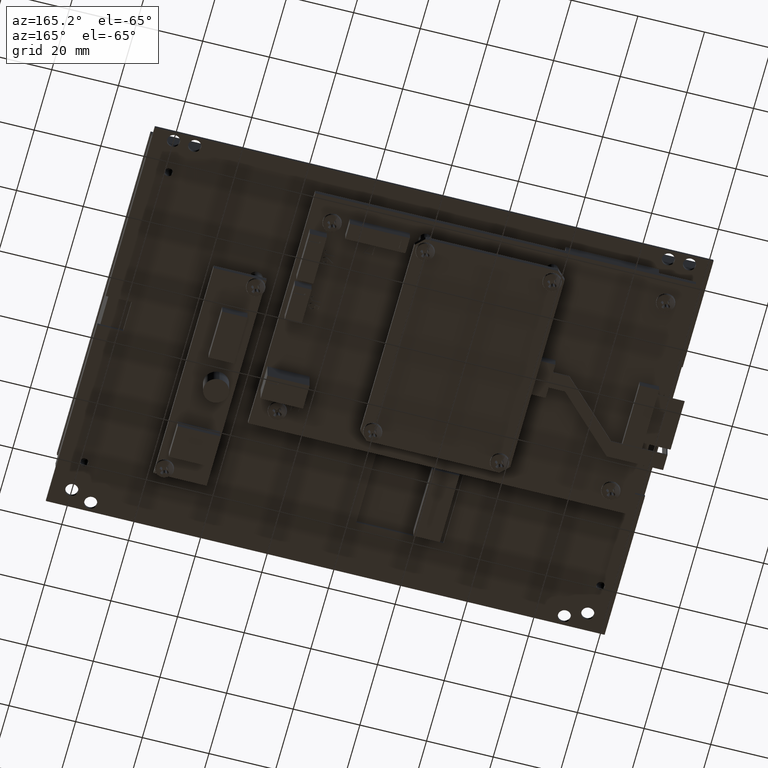
[diagram: clean part render]
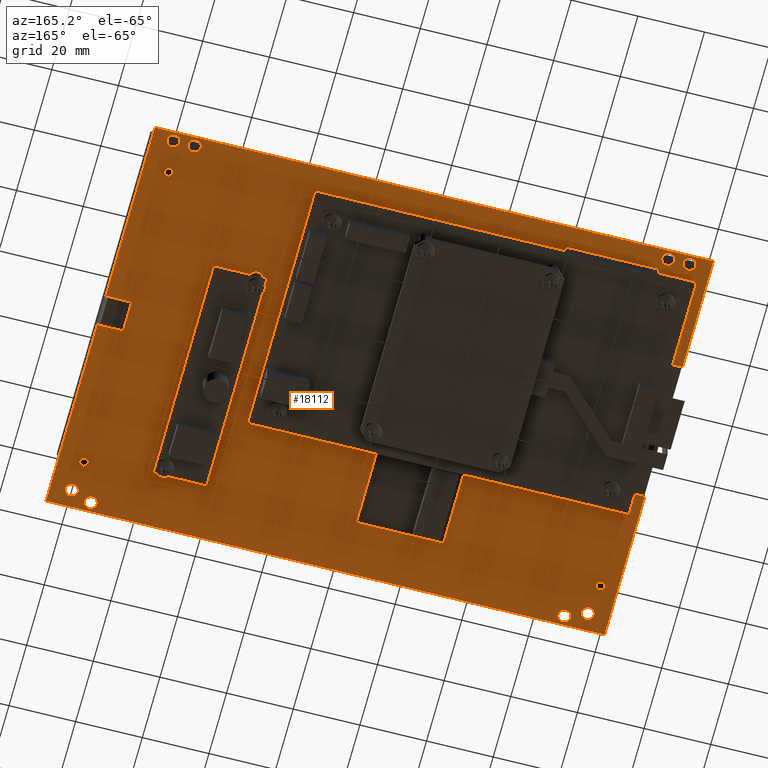
[diagram: same view with one face highlighted and labeled with its STEP entity id]
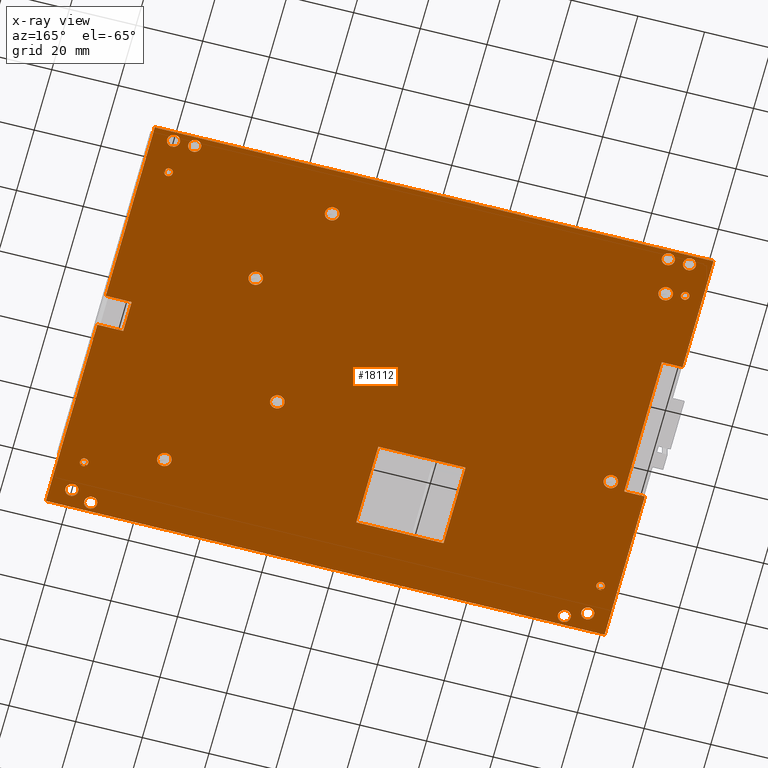
[diagram: x-ray of the same camera — body ghosted, the highlighted face saturated]
A machine part, auxiliary view. The second image highlights one B-rep face of the part: STEP entity #18112.
The next image is the same camera in x-ray: the body ghosted, the highlighted face saturated — about 0% of this face is hidden behind the body in this view.
In plain terms, the highlighted planar face has unit normal (0, 0, -1).
Its self-contained STEP definition (entity closure, byte-faithful):
#718 = EDGE_CURVE ( 'NONE', #7805, #7856, #7700, .T. ) ;
#721 = EDGE_CURVE ( 'NONE', #7651, #7840, #7699, .T. ) ;
#725 = EDGE_CURVE ( 'NONE', #7648, #7645, #7707, .T. ) ;
#729 = EDGE_CURVE ( 'NONE', #7647, #7644, #7765, .T. ) ;
#733 = EDGE_CURVE ( 'NONE', #7839, #7837, #7773, .T. ) ;
#737 = EDGE_CURVE ( 'NONE', #7831, #7830, #7779, .T. ) ;
#741 = EDGE_CURVE ( 'NONE', #7825, #7843, #7785, .T. ) ;
#745 = EDGE_CURVE ( 'NONE', #7855, #7853, #7791, .T. ) ;
#749 = EDGE_CURVE ( 'NONE', #7847, #7841, #7797, .T. ) ;
#753 = EDGE_CURVE ( 'NONE', #7852, #7845, #7129, .T. ) ;
#757 = EDGE_CURVE ( 'NONE', #7657, #7654, #7137, .T. ) ;
#761 = EDGE_CURVE ( 'NONE', #7658, #7659, #7143, .T. ) ;
#765 = EDGE_CURVE ( 'NONE', #7669, #7672, #7149, .T. ) ;
#769 = EDGE_CURVE ( 'NONE', #7861, #7862, #7155, .T. ) ;
#773 = EDGE_CURVE ( 'NONE', #7877, #7876, #7161, .T. ) ;
#777 = EDGE_CURVE ( 'NONE', #7879, #7882, #19380, .T. ) ;
#1058 = EDGE_LOOP ( 'NONE', ( #1215, #1186 ) ) ;
#1060 = EDGE_LOOP ( 'NONE', ( #1208, #1214 ) ) ;
#1062 = EDGE_LOOP ( 'NONE', ( #8325, #8326, #8327, #8328, #8329, #8330, #8331, #8332, #8333, #1179, #1191, #1220 ) ) ;
#1063 = EDGE_LOOP ( 'NONE', ( #1192, #1185 ) ) ;
#1064 = EDGE_LOOP ( 'NONE', ( #1193, #1218 ) ) ;
#1065 = EDGE_LOOP ( 'NONE', ( #1212, #1213 ) ) ;
#1066 = EDGE_LOOP ( 'NONE', ( #1176, #1177, #1221, #1182 ) ) ;
#1067 = EDGE_LOOP ( 'NONE', ( #1181, #1187 ) ) ;
#1068 = EDGE_LOOP ( 'NONE', ( #1188, #1190 ) ) ;
#1069 = EDGE_LOOP ( 'NONE', ( #1209, #1189 ) ) ;
#1070 = EDGE_LOOP ( 'NONE', ( #1183, #1194 ) ) ;
#1071 = EDGE_LOOP ( 'NONE', ( #1207, #1203 ) ) ;
#1086 = EDGE_LOOP ( 'NONE', ( #1184, #1180 ) ) ;
#1088 = EDGE_LOOP ( 'NONE', ( #1202, #1195 ) ) ;
#1090 = EDGE_LOOP ( 'NONE', ( #1178, #1206 ) ) ;
#1091 = EDGE_LOOP ( 'NONE', ( #1216, #1217 ) ) ;
#1092 = EDGE_LOOP ( 'NONE', ( #1219, #1201 ) ) ;
#1093 = EDGE_LOOP ( 'NONE', ( #1205, #1204 ) ) ;
#1094 = EDGE_LOOP ( 'NONE', ( #1200, #1199 ) ) ;
#1129 = EDGE_LOOP ( 'NONE', ( #1211, #1210 ) ) ;
#1176 = ORIENTED_EDGE ( 'NONE', *, *, #17754, .T. ) ;
#1177 = ORIENTED_EDGE ( 'NONE', *, *, #17755, .T. ) ;
#1178 = ORIENTED_EDGE ( 'NONE', *, *, #17769, .T. ) ;
#1179 = ORIENTED_EDGE ( 'NONE', *, *, #17704, .F. ) ;
#1180 = ORIENTED_EDGE ( 'NONE', *, *, #757, .T. ) ;
#1181 = ORIENTED_EDGE ( 'NONE', *, *, #17759, .T. ) ;
#1182 = ORIENTED_EDGE ( 'NONE', *, *, #17757, .T. ) ;
#1183 = ORIENTED_EDGE ( 'NONE', *, *, #17766, .T. ) ;
#1184 = ORIENTED_EDGE ( 'NONE', *, *, #17768, .T. ) ;
#1185 = ORIENTED_EDGE ( 'NONE', *, *, #729, .T. ) ;
#1186 = ORIENTED_EDGE ( 'NONE', *, *, #745, .T. ) ;
#1187 = ORIENTED_EDGE ( 'NONE', *, *, #721, .T. ) ;
#1188 = ORIENTED_EDGE ( 'NONE', *, *, #17758, .T. ) ;
#1189 = ORIENTED_EDGE ( 'NONE', *, *, #733, .T. ) ;
#1190 = ORIENTED_EDGE ( 'NONE', *, *, #718, .T. ) ;
#1191 = ORIENTED_EDGE ( 'NONE', *, *, #17712, .F. ) ;
#1192 = ORIENTED_EDGE ( 'NONE', *, *, #17761, .T. ) ;
#1193 = ORIENTED_EDGE ( 'NONE', *, *, #17763, .T. ) ;
#1194 = ORIENTED_EDGE ( 'NONE', *, *, #749, .T. ) ;
#1195 = ORIENTED_EDGE ( 'NONE', *, *, #765, .T. ) ;
#1199 = ORIENTED_EDGE ( 'NONE', *, *, #6352, .T. ) ;
#1200 = ORIENTED_EDGE ( 'NONE', *, *, #17775, .T. ) ;
#1201 = ORIENTED_EDGE ( 'NONE', *, *, #777, .T. ) ;
#1202 = ORIENTED_EDGE ( 'NONE', *, *, #17770, .T. ) ;
#1203 = ORIENTED_EDGE ( 'NONE', *, *, #753, .T. ) ;
#1204 = ORIENTED_EDGE ( 'NONE', *, *, #6348, .T. ) ;
#1205 = ORIENTED_EDGE ( 'NONE', *, *, #17774, .T. ) ;
#1206 = ORIENTED_EDGE ( 'NONE', *, *, #761, .T. ) ;
#1207 = ORIENTED_EDGE ( 'NONE', *, *, #17767, .T. ) ;
#1208 = ORIENTED_EDGE ( 'NONE', *, *, #17764, .T. ) ;
#1209 = ORIENTED_EDGE ( 'NONE', *, *, #17762, .T. ) ;
#1210 = ORIENTED_EDGE ( 'NONE', *, *, #769, .T. ) ;
#1211 = ORIENTED_EDGE ( 'NONE', *, *, #17771, .T. ) ;
#1212 = ORIENTED_EDGE ( 'NONE', *, *, #17760, .T. ) ;
#1213 = ORIENTED_EDGE ( 'NONE', *, *, #725, .T. ) ;
#1214 = ORIENTED_EDGE ( 'NONE', *, *, #741, .T. ) ;
#1215 = ORIENTED_EDGE ( 'NONE', *, *, #17765, .T. ) ;
#1216 = ORIENTED_EDGE ( 'NONE', *, *, #17772, .T. ) ;
#1217 = ORIENTED_EDGE ( 'NONE', *, *, #773, .T. ) ;
#1218 = ORIENTED_EDGE ( 'NONE', *, *, #737, .T. ) ;
#1219 = ORIENTED_EDGE ( 'NONE', *, *, #17773, .T. ) ;
#1220 = ORIENTED_EDGE ( 'NONE', *, *, #17702, .F. ) ;
#1221 = ORIENTED_EDGE ( 'NONE', *, *, #17756, .T. ) ;
#1401 = VECTOR ( 'NONE', #11081, 39.37007874015748100 ) ;
#1422 = VECTOR ( 'NONE', #11093, 39.37007874015748100 ) ;
#1428 = VECTOR ( 'NONE', #11119, 39.37007874015748100 ) ;
#1429 = VECTOR ( 'NONE', #11173, 39.37007874015748100 ) ;
#1432 = VECTOR ( 'NONE', #11145, 39.37007874015748100 ) ;
#1437 = VECTOR ( 'NONE', #11186, 39.37007874015748100 ) ;
#1484 = VECTOR ( 'NONE', #11393, 39.37007874015748100 ) ;
#1486 = VECTOR ( 'NONE', #11404, 39.37007874015748100 ) ;
#1487 = VECTOR ( 'NONE', #11400, 39.37007874015748100 ) ;
#1488 = VECTOR ( 'NONE', #11431, 39.37007874015748100 ) ;
#1489 = VECTOR ( 'NONE', #11409, 39.37007874015748100 ) ;
#1490 = VECTOR ( 'NONE', #11415, 39.37007874015748100 ) ;
#1491 = VECTOR ( 'NONE', #11420, 39.37007874015748100 ) ;
#1492 = VECTOR ( 'NONE', #11425, 39.37007874015748100 ) ;
#1494 = VECTOR ( 'NONE', #11438, 39.37007874015748100 ) ;
#1495 = VECTOR ( 'NONE', #11445, 39.37007874015748100 ) ;
#1496 = CIRCLE ( 'NONE', #1498, 0.08299999999999963000 ) ;
#1497 = CIRCLE ( 'NONE', #1500, 0.08299999999999990700 ) ;
#1498 = AXIS2_PLACEMENT_3D ( 'NONE', #11450, #11452, #11453 ) ;
#1499 = CIRCLE ( 'NONE', #1502, 0.08299999999999976800 ) ;
#1500 = AXIS2_PLACEMENT_3D ( 'NONE', #11456, #11458, #11460 ) ;
#1501 = CIRCLE ( 'NONE', #1504, 0.08299999999999949100 ) ;
#1502 = AXIS2_PLACEMENT_3D ( 'NONE', #11463, #11464, #11466 ) ;
#1503 = CIRCLE ( 'NONE', #1506, 0.08299999999999963000 ) ;
#1504 = AXIS2_PLACEMENT_3D ( 'NONE', #11468, #11470, #11472 ) ;
#1505 = CIRCLE ( 'NONE', #1508, 0.08299999999999963000 ) ;
#1506 = AXIS2_PLACEMENT_3D ( 'NONE', #11474, #11476, #11477 ) ;
#1507 = CIRCLE ( 'NONE', #1510, 0.07500000000000015000 ) ;
#1508 = AXIS2_PLACEMENT_3D ( 'NONE', #11480, #11481, #11482 ) ;
#1509 = CIRCLE ( 'NONE', #1512, 0.07500000000000015000 ) ;
#1510 = AXIS2_PLACEMENT_3D ( 'NONE', #11485, #11487, #11488 ) ;
#1511 = CIRCLE ( 'NONE', #1514, 0.07500000000000015000 ) ;
#1512 = AXIS2_PLACEMENT_3D ( 'NONE', #11491, #11493, #11495 ) ;
#1513 = CIRCLE ( 'NONE', #1516, 0.07500000000000015000 ) ;
#1514 = AXIS2_PLACEMENT_3D ( 'NONE', #11499, #11501, #11503 ) ;
#1515 = CIRCLE ( 'NONE', #1518, 0.07500000000000015000 ) ;
#1516 = AXIS2_PLACEMENT_3D ( 'NONE', #11507, #11509, #11510 ) ;
#1517 = CIRCLE ( 'NONE', #1520, 0.07500000000000015000 ) ;
#1518 = AXIS2_PLACEMENT_3D ( 'NONE', #11513, #11515, #11517 ) ;
#1519 = CIRCLE ( 'NONE', #1522, 0.07500000000000015000 ) ;
#1520 = AXIS2_PLACEMENT_3D ( 'NONE', #11520, #11522, #11524 ) ;
#1521 = CIRCLE ( 'NONE', #1524, 0.07500000000000015000 ) ;
#1522 = AXIS2_PLACEMENT_3D ( 'NONE', #11527, #11529, #11530 ) ;
#1523 = CIRCLE ( 'NONE', #1526, 0.04899999999999993900 ) ;
#1524 = AXIS2_PLACEMENT_3D ( 'NONE', #11534, #11535, #11537 ) ;
#1525 = CIRCLE ( 'NONE', #1528, 0.04899999999999993900 ) ;
#1526 = AXIS2_PLACEMENT_3D ( 'NONE', #11540, #11542, #11544 ) ;
#1527 = CIRCLE ( 'NONE', #1530, 0.04899999999999993900 ) ;
#1528 = AXIS2_PLACEMENT_3D ( 'NONE', #11547, #11549, #11551 ) ;
#1529 = CIRCLE ( 'NONE', #1532, 0.04899999999999993900 ) ;
#1530 = AXIS2_PLACEMENT_3D ( 'NONE', #11557, #11559, #11560 ) ;
#1532 = AXIS2_PLACEMENT_3D ( 'NONE', #11563, #11564, #11566 ) ;
#1974 = CARTESIAN_POINT ( 'NONE',  ( 2.124999999999999100, -1.585000000000000200, 0.0000000000000000000 ) ) ;
#1975 = DIRECTION ( 'NONE',  ( 0.0000000000000000000, 0.0000000000000000000, 1.000000000000000000 ) ) ;
#1976 = DIRECTION ( 'NONE',  ( 1.000000000000000000, 0.0000000000000000000, 0.0000000000000000000 ) ) ;
#1984 = CARTESIAN_POINT ( 'NONE',  ( 1.699999999999999300, 0.8899999999999997900, 0.0000000000000000000 ) ) ;
#1985 = DIRECTION ( 'NONE',  ( 0.0000000000000000000, 0.0000000000000000000, 1.000000000000000000 ) ) ;
#1986 = DIRECTION ( 'NONE',  ( 1.000000000000000000, 0.0000000000000000000, 0.0000000000000000000 ) ) ;
#1996 = CARTESIAN_POINT ( 'NONE',  ( 1.063999999999999200, -0.5520000000000002700, 0.0000000000000000000 ) ) ;
#1997 = DIRECTION ( 'NONE',  ( 0.0000000000000000000, 0.0000000000000000000, 1.000000000000000000 ) ) ;
#1998 = DIRECTION ( 'NONE',  ( 1.000000000000000000, 0.0000000000000000000, 0.0000000000000000000 ) ) ;
#2008 = CARTESIAN_POINT ( 'NONE',  ( 1.063999999999998700, 1.897999999999999900, 0.0000000000000000000 ) ) ;
#2009 = DIRECTION ( 'NONE',  ( 0.0000000000000000000, 0.0000000000000000000, 1.000000000000000000 ) ) ;
#2010 = DIRECTION ( 'NONE',  ( 1.000000000000000000, 0.0000000000000000000, 0.0000000000000000000 ) ) ;
#2020 = CARTESIAN_POINT ( 'NONE',  ( -2.876000000000000800, -0.5520000000000002700, 0.0000000000000000000 ) ) ;
#2021 = DIRECTION ( 'NONE',  ( 0.0000000000000000000, 0.0000000000000000000, 1.000000000000000000 ) ) ;
#2022 = DIRECTION ( 'NONE',  ( 1.000000000000000000, 0.0000000000000000000, 0.0000000000000000000 ) ) ;
#2032 = CARTESIAN_POINT ( 'NONE',  ( -2.876000000000000800, 1.897999999999999900, 0.0000000000000000000 ) ) ;
#2033 = DIRECTION ( 'NONE',  ( 0.0000000000000000000, 0.0000000000000000000, 1.000000000000000000 ) ) ;
#2034 = DIRECTION ( 'NONE',  ( 1.000000000000000000, 0.0000000000000000000, 0.0000000000000000000 ) ) ;
#2044 = CARTESIAN_POINT ( 'NONE',  ( 3.049999999999998500, 2.325000000000000600, 0.0000000000000000000 ) ) ;
#2045 = DIRECTION ( 'NONE',  ( 0.0000000000000000000, 0.0000000000000000000, 1.000000000000000000 ) ) ;
#2046 = DIRECTION ( 'NONE',  ( -1.000000000000000000, 0.0000000000000000000, 0.0000000000000000000 ) ) ;
#2056 = CARTESIAN_POINT ( 'NONE',  ( 2.799999999999998000, 2.325000000000000600, 0.0000000000000000000 ) ) ;
#2057 = DIRECTION ( 'NONE',  ( 0.0000000000000000000, 0.0000000000000000000, 1.000000000000000000 ) ) ;
#2058 = DIRECTION ( 'NONE',  ( -1.000000000000000000, 0.0000000000000000000, 0.0000000000000000000 ) ) ;
#2068 = CARTESIAN_POINT ( 'NONE',  ( 3.049999999999998900, -2.224999999999999200, 0.0000000000000000000 ) ) ;
#2069 = DIRECTION ( 'NONE',  ( 0.0000000000000000000, 0.0000000000000000000, 1.000000000000000000 ) ) ;
#2070 = DIRECTION ( 'NONE',  ( -1.000000000000000000, 0.0000000000000000000, 0.0000000000000000000 ) ) ;
#2080 = CARTESIAN_POINT ( 'NONE',  ( 2.799999999999998900, -2.324999999999999300, 0.0000000000000000000 ) ) ;
#2081 = DIRECTION ( 'NONE',  ( 0.0000000000000000000, 0.0000000000000000000, 1.000000000000000000 ) ) ;
#2082 = DIRECTION ( 'NONE',  ( -1.000000000000000000, 0.0000000000000000000, 0.0000000000000000000 ) ) ;
#2092 = CARTESIAN_POINT ( 'NONE',  ( -2.795000000000000800, -2.325000000000000600, 0.0000000000000000000 ) ) ;
#2093 = DIRECTION ( 'NONE',  ( 0.0000000000000000000, 0.0000000000000000000, 1.000000000000000000 ) ) ;
#2094 = DIRECTION ( 'NONE',  ( 1.000000000000000000, 0.0000000000000000000, 0.0000000000000000000 ) ) ;
#2104 = CARTESIAN_POINT ( 'NONE',  ( -3.045000000000000400, -2.225000000000000500, 0.0000000000000000000 ) ) ;
#2105 = DIRECTION ( 'NONE',  ( 0.0000000000000000000, 0.0000000000000000000, 1.000000000000000000 ) ) ;
#2106 = DIRECTION ( 'NONE',  ( 1.000000000000000000, 0.0000000000000000000, 0.0000000000000000000 ) ) ;
#2116 = CARTESIAN_POINT ( 'NONE',  ( -2.795000000000000800, 2.324999999999999700, 0.0000000000000000000 ) ) ;
#2117 = DIRECTION ( 'NONE',  ( 0.0000000000000000000, 0.0000000000000000000, 1.000000000000000000 ) ) ;
#2118 = DIRECTION ( 'NONE',  ( 1.000000000000000000, 0.0000000000000000000, 0.0000000000000000000 ) ) ;
#2128 = CARTESIAN_POINT ( 'NONE',  ( -3.045000000000000800, 2.324999999999999700, 0.0000000000000000000 ) ) ;
#2129 = DIRECTION ( 'NONE',  ( 0.0000000000000000000, 0.0000000000000000000, 1.000000000000000000 ) ) ;
#2130 = DIRECTION ( 'NONE',  ( 1.000000000000000000, 0.0000000000000000000, 0.0000000000000000000 ) ) ;
#2140 = CARTESIAN_POINT ( 'NONE',  ( 3.004000000000000000, -1.852000000000000300, 0.0000000000000000000 ) ) ;
#2141 = DIRECTION ( 'NONE',  ( 0.0000000000000000000, 0.0000000000000000000, 1.000000000000000000 ) ) ;
#2142 = DIRECTION ( 'NONE',  ( 1.000000000000000000, 0.0000000000000000000, 0.0000000000000000000 ) ) ;
#2153 = CARTESIAN_POINT ( 'NONE',  ( -3.098000000000000800, -1.852000000000001000, 0.0000000000000000000 ) ) ;
#2154 = DIRECTION ( 'NONE',  ( 0.0000000000000000000, 0.0000000000000000000, 1.000000000000000000 ) ) ;
#2155 = DIRECTION ( 'NONE',  ( 1.000000000000000000, 0.0000000000000000000, 0.0000000000000000000 ) ) ;
#2841 = CARTESIAN_POINT ( 'NONE',  ( -1.226000000000000400, -0.8050000000000006000, 0.0000000000000000000 ) ) ;
#2843 = CARTESIAN_POINT ( 'NONE',  ( 2.993999999999999800, 0.2379999999999997700, 0.0000000000000000000 ) ) ;
#2850 = CARTESIAN_POINT ( 'NONE',  ( -3.300000000000000700, -2.435000000000000100, 0.0000000000000000000 ) ) ;
#2853 = CARTESIAN_POINT ( 'NONE',  ( 3.299999999999998500, -0.1370000000000004800, 0.0000000000000000000 ) ) ;
#2855 = CARTESIAN_POINT ( 'NONE',  ( -3.300000000000000300, -0.6320000000000005600, 0.0000000000000000000 ) ) ;
#4074 = CARTESIAN_POINT ( 'NONE',  ( 3.003999999999999600, 1.928000000000000400, 0.0000000000000000000 ) ) ;
#4075 = DIRECTION ( 'NONE',  ( 0.0000000000000000000, 0.0000000000000000000, 1.000000000000000000 ) ) ;
#4076 = DIRECTION ( 'NONE',  ( 1.000000000000000000, 0.0000000000000000000, 0.0000000000000000000 ) ) ;
#4086 = CARTESIAN_POINT ( 'NONE',  ( -3.098000000000000800, 1.928000000000000400, 0.0000000000000000000 ) ) ;
#4087 = DIRECTION ( 'NONE',  ( 0.0000000000000000000, 0.0000000000000000000, 1.000000000000000000 ) ) ;
#4088 = DIRECTION ( 'NONE',  ( 1.000000000000000000, 0.0000000000000000000, 0.0000000000000000000 ) ) ;
#4128 = CARTESIAN_POINT ( 'NONE',  ( 1.146999999999998200, 1.897999999999999900, 0.0000000000000000000 ) ) ;
#4129 = CARTESIAN_POINT ( 'NONE',  ( 1.146999999999998900, -0.5520000000000002700, 0.0000000000000000000 ) ) ;
#4131 = CARTESIAN_POINT ( 'NONE',  ( 0.9809999999999992100, 1.897999999999999900, 0.0000000000000000000 ) ) ;
#4132 = CARTESIAN_POINT ( 'NONE',  ( 0.9809999999999993200, -0.5520000000000002700, 0.0000000000000000000 ) ) ;
#4135 = CARTESIAN_POINT ( 'NONE',  ( 1.616999999999999500, 0.8899999999999997900, 0.0000000000000000000 ) ) ;
#4138 = CARTESIAN_POINT ( 'NONE',  ( -2.720000000000000600, -2.325000000000000600, 0.0000000000000000000 ) ) ;
#4141 = CARTESIAN_POINT ( 'NONE',  ( -2.870000000000001000, -2.325000000000000600, 0.0000000000000000000 ) ) ;
#4142 = CARTESIAN_POINT ( 'NONE',  ( -3.120000000000000600, -2.225000000000000500, 0.0000000000000000000 ) ) ;
#4143 = CARTESIAN_POINT ( 'NONE',  ( -2.970000000000000200, -2.225000000000000500, 0.0000000000000000000 ) ) ;
#4153 = CARTESIAN_POINT ( 'NONE',  ( -2.870000000000001000, 2.324999999999999700, 0.0000000000000000000 ) ) ;
#4156 = CARTESIAN_POINT ( 'NONE',  ( -2.720000000000000600, 2.324999999999999700, 0.0000000000000000000 ) ) ;
#5619 = VERTEX_POINT ( 'NONE', #2843 ) ;
#5620 = VERTEX_POINT ( 'NONE', #2841 ) ;
#5629 = VERTEX_POINT ( 'NONE', #2850 ) ;
#5632 = VERTEX_POINT ( 'NONE', #2853 ) ;
#5634 = VERTEX_POINT ( 'NONE', #2855 ) ;
#5883 = AXIS2_PLACEMENT_3D ( 'NONE', #12584, #12587, #12588 ) ;
#6348 = EDGE_CURVE ( 'NONE', #7869, #7868, #19073, .T. ) ;
#6352 = EDGE_CURVE ( 'NONE', #7880, #7872, #19088, .T. ) ;
#7128 = AXIS2_PLACEMENT_3D ( 'NONE', #2068, #2069, #2070 ) ;
#7129 = CIRCLE ( 'NONE', #7136, 0.07500000000000015000 ) ;
#7136 = AXIS2_PLACEMENT_3D ( 'NONE', #2080, #2081, #2082 ) ;
#7137 = CIRCLE ( 'NONE', #7142, 0.07500000000000015000 ) ;
#7142 = AXIS2_PLACEMENT_3D ( 'NONE', #2092, #2093, #2094 ) ;
#7143 = CIRCLE ( 'NONE', #7148, 0.07500000000000015000 ) ;
#7148 = AXIS2_PLACEMENT_3D ( 'NONE', #2104, #2105, #2106 ) ;
#7149 = CIRCLE ( 'NONE', #7154, 0.07500000000000015000 ) ;
#7154 = AXIS2_PLACEMENT_3D ( 'NONE', #2116, #2117, #2118 ) ;
#7155 = CIRCLE ( 'NONE', #7160, 0.07500000000000015000 ) ;
#7160 = AXIS2_PLACEMENT_3D ( 'NONE', #2128, #2129, #2130 ) ;
#7161 = CIRCLE ( 'NONE', #19379, 0.04899999999999993900 ) ;
#7644 = VERTEX_POINT ( 'NONE', #4128 ) ;
#7645 = VERTEX_POINT ( 'NONE', #4129 ) ;
#7647 = VERTEX_POINT ( 'NONE', #4131 ) ;
#7648 = VERTEX_POINT ( 'NONE', #4132 ) ;
#7651 = VERTEX_POINT ( 'NONE', #4135 ) ;
#7654 = VERTEX_POINT ( 'NONE', #4138 ) ;
#7657 = VERTEX_POINT ( 'NONE', #4141 ) ;
#7658 = VERTEX_POINT ( 'NONE', #4142 ) ;
#7659 = VERTEX_POINT ( 'NONE', #4143 ) ;
#7669 = VERTEX_POINT ( 'NONE', #4153 ) ;
#7672 = VERTEX_POINT ( 'NONE', #4156 ) ;
#7699 = CIRCLE ( 'NONE', #7706, 0.08299999999999990700 ) ;
#7700 = CIRCLE ( 'NONE', #7701, 0.08299999999999963000 ) ;
#7701 = AXIS2_PLACEMENT_3D ( 'NONE', #1974, #1975, #1976 ) ;
#7706 = AXIS2_PLACEMENT_3D ( 'NONE', #1984, #1985, #1986 ) ;
#7707 = CIRCLE ( 'NONE', #7764, 0.08299999999999976800 ) ;
#7764 = AXIS2_PLACEMENT_3D ( 'NONE', #1996, #1997, #1998 ) ;
#7765 = CIRCLE ( 'NONE', #7772, 0.08299999999999949100 ) ;
#7772 = AXIS2_PLACEMENT_3D ( 'NONE', #2008, #2009, #2010 ) ;
#7773 = CIRCLE ( 'NONE', #7778, 0.08299999999999963000 ) ;
#7778 = AXIS2_PLACEMENT_3D ( 'NONE', #2020, #2021, #2022 ) ;
#7779 = CIRCLE ( 'NONE', #7784, 0.08299999999999963000 ) ;
#7784 = AXIS2_PLACEMENT_3D ( 'NONE', #2032, #2033, #2034 ) ;
#7785 = CIRCLE ( 'NONE', #7790, 0.07500000000000015000 ) ;
#7790 = AXIS2_PLACEMENT_3D ( 'NONE', #2044, #2045, #2046 ) ;
#7791 = CIRCLE ( 'NONE', #7796, 0.07500000000000015000 ) ;
#7796 = AXIS2_PLACEMENT_3D ( 'NONE', #2056, #2057, #2058 ) ;
#7797 = CIRCLE ( 'NONE', #7128, 0.07500000000000015000 ) ;
#7805 = VERTEX_POINT ( 'NONE', #9213 ) ;
#7825 = VERTEX_POINT ( 'NONE', #9231 ) ;
#7830 = VERTEX_POINT ( 'NONE', #9236 ) ;
#7831 = VERTEX_POINT ( 'NONE', #9237 ) ;
#7837 = VERTEX_POINT ( 'NONE', #9243 ) ;
#7839 = VERTEX_POINT ( 'NONE', #9245 ) ;
#7840 = VERTEX_POINT ( 'NONE', #9246 ) ;
#7841 = VERTEX_POINT ( 'NONE', #9247 ) ;
#7843 = VERTEX_POINT ( 'NONE', #9249 ) ;
#7845 = VERTEX_POINT ( 'NONE', #9251 ) ;
#7847 = VERTEX_POINT ( 'NONE', #9253 ) ;
#7852 = VERTEX_POINT ( 'NONE', #9258 ) ;
#7853 = VERTEX_POINT ( 'NONE', #9259 ) ;
#7855 = VERTEX_POINT ( 'NONE', #9261 ) ;
#7856 = VERTEX_POINT ( 'NONE', #9262 ) ;
#7861 = VERTEX_POINT ( 'NONE', #9267 ) ;
#7862 = VERTEX_POINT ( 'NONE', #9268 ) ;
#7868 = VERTEX_POINT ( 'NONE', #9274 ) ;
#7869 = VERTEX_POINT ( 'NONE', #9275 ) ;
#7872 = VERTEX_POINT ( 'NONE', #9278 ) ;
#7876 = VERTEX_POINT ( 'NONE', #9282 ) ;
#7877 = VERTEX_POINT ( 'NONE', #9283 ) ;
#7879 = VERTEX_POINT ( 'NONE', #9285 ) ;
#7880 = VERTEX_POINT ( 'NONE', #9286 ) ;
#7882 = VERTEX_POINT ( 'NONE', #9288 ) ;
#8325 = ORIENTED_EDGE ( 'NONE', *, *, #17748, .F. ) ;
#8326 = ORIENTED_EDGE ( 'NONE', *, *, #17749, .T. ) ;
#8327 = ORIENTED_EDGE ( 'NONE', *, *, #17750, .T. ) ;
#8328 = ORIENTED_EDGE ( 'NONE', *, *, #17708, .F. ) ;
#8329 = ORIENTED_EDGE ( 'NONE', *, *, #17718, .F. ) ;
#8330 = ORIENTED_EDGE ( 'NONE', *, *, #17716, .F. ) ;
#8331 = ORIENTED_EDGE ( 'NONE', *, *, #17751, .T. ) ;
#8332 = ORIENTED_EDGE ( 'NONE', *, *, #17752, .T. ) ;
#8333 = ORIENTED_EDGE ( 'NONE', *, *, #17753, .T. ) ;
#9213 = CARTESIAN_POINT ( 'NONE',  ( 2.041999999999999800, -1.585000000000000200, 0.0000000000000000000 ) ) ;
#9231 = CARTESIAN_POINT ( 'NONE',  ( 2.974999999999998300, 2.325000000000000600, 0.0000000000000000000 ) ) ;
#9236 = CARTESIAN_POINT ( 'NONE',  ( -2.793000000000001000, 1.897999999999999900, 0.0000000000000000000 ) ) ;
#9237 = CARTESIAN_POINT ( 'NONE',  ( -2.959000000000000500, 1.897999999999999900, 0.0000000000000000000 ) ) ;
#9243 = CARTESIAN_POINT ( 'NONE',  ( -2.793000000000001000, -0.5520000000000002700, 0.0000000000000000000 ) ) ;
#9245 = CARTESIAN_POINT ( 'NONE',  ( -2.959000000000000500, -0.5520000000000002700, 0.0000000000000000000 ) ) ;
#9246 = CARTESIAN_POINT ( 'NONE',  ( 1.782999999999999300, 0.8899999999999997900, 0.0000000000000000000 ) ) ;
#9247 = CARTESIAN_POINT ( 'NONE',  ( 3.124999999999999100, -2.224999999999999200, 0.0000000000000000000 ) ) ;
#9249 = CARTESIAN_POINT ( 'NONE',  ( 3.124999999999998700, 2.325000000000000600, 0.0000000000000000000 ) ) ;
#9251 = CARTESIAN_POINT ( 'NONE',  ( 2.874999999999999100, -2.324999999999999300, 0.0000000000000000000 ) ) ;
#9253 = CARTESIAN_POINT ( 'NONE',  ( 2.974999999999998800, -2.224999999999999200, 0.0000000000000000000 ) ) ;
#9258 = CARTESIAN_POINT ( 'NONE',  ( 2.724999999999998800, -2.324999999999999300, 0.0000000000000000000 ) ) ;
#9259 = CARTESIAN_POINT ( 'NONE',  ( 2.874999999999998200, 2.325000000000000600, 0.0000000000000000000 ) ) ;
#9261 = CARTESIAN_POINT ( 'NONE',  ( 2.724999999999997900, 2.325000000000000600, 0.0000000000000000000 ) ) ;
#9262 = CARTESIAN_POINT ( 'NONE',  ( 2.207999999999998900, -1.585000000000000200, 0.0000000000000000000 ) ) ;
#9267 = CARTESIAN_POINT ( 'NONE',  ( -3.120000000000001000, 2.324999999999999700, 0.0000000000000000000 ) ) ;
#9268 = CARTESIAN_POINT ( 'NONE',  ( -2.970000000000000600, 2.324999999999999700, 0.0000000000000000000 ) ) ;
#9274 = CARTESIAN_POINT ( 'NONE',  ( 3.052999999999999500, 1.928000000000000400, 0.0000000000000000000 ) ) ;
#9275 = CARTESIAN_POINT ( 'NONE',  ( 2.954999999999999600, 1.928000000000000400, 0.0000000000000000000 ) ) ;
#9278 = CARTESIAN_POINT ( 'NONE',  ( -3.049000000000000800, 1.928000000000000400, 0.0000000000000000000 ) ) ;
#9282 = CARTESIAN_POINT ( 'NONE',  ( 3.052999999999999900, -1.852000000000000300, 0.0000000000000000000 ) ) ;
#9283 = CARTESIAN_POINT ( 'NONE',  ( 2.955000000000000100, -1.852000000000000300, 0.0000000000000000000 ) ) ;
#9285 = CARTESIAN_POINT ( 'NONE',  ( -3.147000000000000700, -1.852000000000001000, 0.0000000000000000000 ) ) ;
#9286 = CARTESIAN_POINT ( 'NONE',  ( -3.147000000000000700, 1.928000000000000400, 0.0000000000000000000 ) ) ;
#9288 = CARTESIAN_POINT ( 'NONE',  ( -3.049000000000000800, -1.852000000000001000, 0.0000000000000000000 ) ) ;
#11059 = LINE ( 'NONE', #11077, #1401 ) ;
#11066 = LINE ( 'NONE', #11089, #1422 ) ;
#11077 = CARTESIAN_POINT ( 'NONE',  ( 3.299999999999998500, -2.435000000000000100, 0.0000000000000000000 ) ) ;
#11081 = DIRECTION ( 'NONE',  ( 0.0000000000000000000, 1.000000000000000000, 0.0000000000000000000 ) ) ;
#11089 = CARTESIAN_POINT ( 'NONE',  ( -3.300000000000000700, -2.435000000000000100, 0.0000000000000000000 ) ) ;
#11091 = LINE ( 'NONE', #11168, #1429 ) ;
#11093 = DIRECTION ( 'NONE',  ( -0.0000000000000000000, -1.000000000000000000, -0.0000000000000000000 ) ) ;
#11113 = LINE ( 'NONE', #11117, #1428 ) ;
#11117 = CARTESIAN_POINT ( 'NONE',  ( 3.299999999999998500, -2.435000000000000100, 0.0000000000000000000 ) ) ;
#11119 = DIRECTION ( 'NONE',  ( 0.0000000000000000000, 1.000000000000000000, 0.0000000000000000000 ) ) ;
#11140 = LINE ( 'NONE', #11143, #1432 ) ;
#11143 = CARTESIAN_POINT ( 'NONE',  ( -3.300000000000000700, 2.435000000000000100, 0.0000000000000000000 ) ) ;
#11145 = DIRECTION ( 'NONE',  ( -1.000000000000000000, -0.0000000000000000000, -0.0000000000000000000 ) ) ;
#11163 = LINE ( 'NONE', #11182, #1437 ) ;
#11168 = CARTESIAN_POINT ( 'NONE',  ( -3.300000000000000700, -2.435000000000000100, 0.0000000000000000000 ) ) ;
#11173 = DIRECTION ( 'NONE',  ( -0.0000000000000000000, -1.000000000000000000, -0.0000000000000000000 ) ) ;
#11182 = CARTESIAN_POINT ( 'NONE',  ( -3.300000000000000700, -2.435000000000000100, 0.0000000000000000000 ) ) ;
#11186 = DIRECTION ( 'NONE',  ( 1.000000000000000000, 0.0000000000000000000, 0.0000000000000000000 ) ) ;
#11370 = LINE ( 'NONE', #11392, #1484 ) ;
#11376 = LINE ( 'NONE', #11401, #1486 ) ;
#11387 = LINE ( 'NONE', #11427, #1488 ) ;
#11392 = CARTESIAN_POINT ( 'NONE',  ( 3.299999999999998500, 0.2379999999999997700, 0.0000000000000000000 ) ) ;
#11393 = DIRECTION ( 'NONE',  ( 1.000000000000000000, 0.0000000000000000000, 0.0000000000000000000 ) ) ;
#11395 = LINE ( 'NONE', #11398, #1487 ) ;
#11398 = CARTESIAN_POINT ( 'NONE',  ( 2.993999999999999800, 0.2379999999999997700, 0.0000000000000000000 ) ) ;
#11400 = DIRECTION ( 'NONE',  ( 0.0000000000000000000, -1.000000000000000000, 0.0000000000000000000 ) ) ;
#11401 = CARTESIAN_POINT ( 'NONE',  ( 2.993999999999999800, -0.1370000000000004800, 0.0000000000000000000 ) ) ;
#11404 = DIRECTION ( 'NONE',  ( 1.000000000000000000, 0.0000000000000000000, 0.0000000000000000000 ) ) ;
#11405 = LINE ( 'NONE', #11408, #1489 ) ;
#11408 = CARTESIAN_POINT ( 'NONE',  ( -3.300000000000000300, -0.6320000000000005600, 0.0000000000000000000 ) ) ;
#11409 = DIRECTION ( 'NONE',  ( 1.000000000000000000, 0.0000000000000000000, 0.0000000000000000000 ) ) ;
#11411 = LINE ( 'NONE', #11414, #1490 ) ;
#11414 = CARTESIAN_POINT ( 'NONE',  ( -3.055000000000001000, 1.051999999999999800, 0.0000000000000000000 ) ) ;
#11415 = DIRECTION ( 'NONE',  ( -0.0000000000000000000, 1.000000000000000000, -0.0000000000000000000 ) ) ;
#11417 = LINE ( 'NONE', #11419, #1491 ) ;
#11419 = CARTESIAN_POINT ( 'NONE',  ( -3.300000000000000300, 1.051999999999999800, 0.0000000000000000000 ) ) ;
#11420 = DIRECTION ( 'NONE',  ( -1.000000000000000000, -0.0000000000000000000, -0.0000000000000000000 ) ) ;
#11421 = LINE ( 'NONE', #11423, #1492 ) ;
#11423 = CARTESIAN_POINT ( 'NONE',  ( -1.226000000000000400, -0.8050000000000006000, 0.0000000000000000000 ) ) ;
#11425 = DIRECTION ( 'NONE',  ( 1.388134143122085000E-016, -1.000000000000000000, 0.0000000000000000000 ) ) ;
#11427 = CARTESIAN_POINT ( 'NONE',  ( -1.226000000000000400, -1.789000000000000600, 0.0000000000000000000 ) ) ;
#11431 = DIRECTION ( 'NONE',  ( 1.000000000000000000, 0.0000000000000000000, 0.0000000000000000000 ) ) ;
#11433 = LINE ( 'NONE', #11436, #1494 ) ;
#11436 = CARTESIAN_POINT ( 'NONE',  ( -0.1960000000000003100, -0.8050000000000006000, 0.0000000000000000000 ) ) ;
#11438 = DIRECTION ( 'NONE',  ( -1.388134143122085000E-016, 1.000000000000000000, -0.0000000000000000000 ) ) ;
#11440 = LINE ( 'NONE', #11443, #1495 ) ;
#11443 = CARTESIAN_POINT ( 'NONE',  ( -1.226000000000000400, -0.8050000000000006000, 0.0000000000000000000 ) ) ;
#11445 = DIRECTION ( 'NONE',  ( -1.000000000000000000, -0.0000000000000000000, -0.0000000000000000000 ) ) ;
#11450 = CARTESIAN_POINT ( 'NONE',  ( 2.124999999999999100, -1.585000000000000200, 0.0000000000000000000 ) ) ;
#11452 = DIRECTION ( 'NONE',  ( 0.0000000000000000000, 0.0000000000000000000, 1.000000000000000000 ) ) ;
#11453 = DIRECTION ( 'NONE',  ( 1.000000000000000000, 0.0000000000000000000, 0.0000000000000000000 ) ) ;
#11456 = CARTESIAN_POINT ( 'NONE',  ( 1.699999999999999300, 0.8899999999999997900, 0.0000000000000000000 ) ) ;
#11458 = DIRECTION ( 'NONE',  ( 0.0000000000000000000, 0.0000000000000000000, 1.000000000000000000 ) ) ;
#11460 = DIRECTION ( 'NONE',  ( 1.000000000000000000, 0.0000000000000000000, 0.0000000000000000000 ) ) ;
#11463 = CARTESIAN_POINT ( 'NONE',  ( 1.063999999999999200, -0.5520000000000002700, 0.0000000000000000000 ) ) ;
#11464 = DIRECTION ( 'NONE',  ( 0.0000000000000000000, 0.0000000000000000000, 1.000000000000000000 ) ) ;
#11466 = DIRECTION ( 'NONE',  ( 1.000000000000000000, 0.0000000000000000000, 0.0000000000000000000 ) ) ;
#11468 = CARTESIAN_POINT ( 'NONE',  ( 1.063999999999998700, 1.897999999999999900, 0.0000000000000000000 ) ) ;
#11470 = DIRECTION ( 'NONE',  ( 0.0000000000000000000, 0.0000000000000000000, 1.000000000000000000 ) ) ;
#11472 = DIRECTION ( 'NONE',  ( 1.000000000000000000, 0.0000000000000000000, 0.0000000000000000000 ) ) ;
#11474 = CARTESIAN_POINT ( 'NONE',  ( -2.876000000000000800, -0.5520000000000002700, 0.0000000000000000000 ) ) ;
#11476 = DIRECTION ( 'NONE',  ( 0.0000000000000000000, 0.0000000000000000000, 1.000000000000000000 ) ) ;
#11477 = DIRECTION ( 'NONE',  ( 1.000000000000000000, 0.0000000000000000000, 0.0000000000000000000 ) ) ;
#11480 = CARTESIAN_POINT ( 'NONE',  ( -2.876000000000000800, 1.897999999999999900, 0.0000000000000000000 ) ) ;
#11481 = DIRECTION ( 'NONE',  ( 0.0000000000000000000, 0.0000000000000000000, 1.000000000000000000 ) ) ;
#11482 = DIRECTION ( 'NONE',  ( 1.000000000000000000, 0.0000000000000000000, 0.0000000000000000000 ) ) ;
#11485 = CARTESIAN_POINT ( 'NONE',  ( 3.049999999999998500, 2.325000000000000600, 0.0000000000000000000 ) ) ;
#11487 = DIRECTION ( 'NONE',  ( 0.0000000000000000000, 0.0000000000000000000, 1.000000000000000000 ) ) ;
#11488 = DIRECTION ( 'NONE',  ( -1.000000000000000000, 0.0000000000000000000, 0.0000000000000000000 ) ) ;
#11491 = CARTESIAN_POINT ( 'NONE',  ( 2.799999999999998000, 2.325000000000000600, 0.0000000000000000000 ) ) ;
#11493 = DIRECTION ( 'NONE',  ( 0.0000000000000000000, 0.0000000000000000000, 1.000000000000000000 ) ) ;
#11495 = DIRECTION ( 'NONE',  ( -1.000000000000000000, 0.0000000000000000000, 0.0000000000000000000 ) ) ;
#11499 = CARTESIAN_POINT ( 'NONE',  ( 3.049999999999998900, -2.224999999999999200, 0.0000000000000000000 ) ) ;
#11501 = DIRECTION ( 'NONE',  ( 0.0000000000000000000, 0.0000000000000000000, 1.000000000000000000 ) ) ;
#11503 = DIRECTION ( 'NONE',  ( -1.000000000000000000, 0.0000000000000000000, 0.0000000000000000000 ) ) ;
#11507 = CARTESIAN_POINT ( 'NONE',  ( 2.799999999999998900, -2.324999999999999300, 0.0000000000000000000 ) ) ;
#11509 = DIRECTION ( 'NONE',  ( 0.0000000000000000000, 0.0000000000000000000, 1.000000000000000000 ) ) ;
#11510 = DIRECTION ( 'NONE',  ( -1.000000000000000000, 0.0000000000000000000, 0.0000000000000000000 ) ) ;
#11513 = CARTESIAN_POINT ( 'NONE',  ( -2.795000000000000800, -2.325000000000000600, 0.0000000000000000000 ) ) ;
#11515 = DIRECTION ( 'NONE',  ( 0.0000000000000000000, 0.0000000000000000000, 1.000000000000000000 ) ) ;
#11517 = DIRECTION ( 'NONE',  ( 1.000000000000000000, 0.0000000000000000000, 0.0000000000000000000 ) ) ;
#11520 = CARTESIAN_POINT ( 'NONE',  ( -3.045000000000000400, -2.225000000000000500, 0.0000000000000000000 ) ) ;
#11522 = DIRECTION ( 'NONE',  ( 0.0000000000000000000, 0.0000000000000000000, 1.000000000000000000 ) ) ;
#11524 = DIRECTION ( 'NONE',  ( 1.000000000000000000, 0.0000000000000000000, 0.0000000000000000000 ) ) ;
#11527 = CARTESIAN_POINT ( 'NONE',  ( -2.795000000000000800, 2.324999999999999700, 0.0000000000000000000 ) ) ;
#11529 = DIRECTION ( 'NONE',  ( 0.0000000000000000000, 0.0000000000000000000, 1.000000000000000000 ) ) ;
#11530 = DIRECTION ( 'NONE',  ( 1.000000000000000000, 0.0000000000000000000, 0.0000000000000000000 ) ) ;
#11534 = CARTESIAN_POINT ( 'NONE',  ( -3.045000000000000800, 2.324999999999999700, 0.0000000000000000000 ) ) ;
#11535 = DIRECTION ( 'NONE',  ( 0.0000000000000000000, 0.0000000000000000000, 1.000000000000000000 ) ) ;
#11537 = DIRECTION ( 'NONE',  ( 1.000000000000000000, 0.0000000000000000000, 0.0000000000000000000 ) ) ;
#11540 = CARTESIAN_POINT ( 'NONE',  ( 3.004000000000000000, -1.852000000000000300, 0.0000000000000000000 ) ) ;
#11542 = DIRECTION ( 'NONE',  ( 0.0000000000000000000, 0.0000000000000000000, 1.000000000000000000 ) ) ;
#11544 = DIRECTION ( 'NONE',  ( 1.000000000000000000, 0.0000000000000000000, 0.0000000000000000000 ) ) ;
#11547 = CARTESIAN_POINT ( 'NONE',  ( -3.098000000000000800, -1.852000000000001000, 0.0000000000000000000 ) ) ;
#11549 = DIRECTION ( 'NONE',  ( 0.0000000000000000000, 0.0000000000000000000, 1.000000000000000000 ) ) ;
#11551 = DIRECTION ( 'NONE',  ( 1.000000000000000000, 0.0000000000000000000, 0.0000000000000000000 ) ) ;
#11557 = CARTESIAN_POINT ( 'NONE',  ( 3.003999999999999600, 1.928000000000000400, 0.0000000000000000000 ) ) ;
#11559 = DIRECTION ( 'NONE',  ( 0.0000000000000000000, 0.0000000000000000000, 1.000000000000000000 ) ) ;
#11560 = DIRECTION ( 'NONE',  ( 1.000000000000000000, 0.0000000000000000000, 0.0000000000000000000 ) ) ;
#11563 = CARTESIAN_POINT ( 'NONE',  ( -3.098000000000000800, 1.928000000000000400, 0.0000000000000000000 ) ) ;
#11564 = DIRECTION ( 'NONE',  ( 0.0000000000000000000, 0.0000000000000000000, 1.000000000000000000 ) ) ;
#11566 = DIRECTION ( 'NONE',  ( 1.000000000000000000, 0.0000000000000000000, 0.0000000000000000000 ) ) ;
#12295 = FACE_BOUND ( 'NONE', #1064, .T. ) ;
#12550 = FACE_BOUND ( 'NONE', #1058, .T. ) ;
#12552 = FACE_BOUND ( 'NONE', #1066, .T. ) ;
#12556 = FACE_BOUND ( 'NONE', #1065, .T. ) ;
#12557 = FACE_OUTER_BOUND ( 'NONE', #1062, .T. ) ;
#12558 = FACE_BOUND ( 'NONE', #1063, .T. ) ;
#12559 = FACE_BOUND ( 'NONE', #1069, .T. ) ;
#12560 = FACE_BOUND ( 'NONE', #1068, .T. ) ;
#12571 = FACE_BOUND ( 'NONE', #1067, .T. ) ;
#12572 = FACE_BOUND ( 'NONE', #1060, .T. ) ;
#12573 = FACE_BOUND ( 'NONE', #1070, .T. ) ;
#12574 = FACE_BOUND ( 'NONE', #1071, .T. ) ;
#12575 = FACE_BOUND ( 'NONE', #1086, .T. ) ;
#12576 = FACE_BOUND ( 'NONE', #1090, .T. ) ;
#12577 = FACE_BOUND ( 'NONE', #1088, .T. ) ;
#12578 = FACE_BOUND ( 'NONE', #1129, .T. ) ;
#12579 = FACE_BOUND ( 'NONE', #1091, .T. ) ;
#12580 = FACE_BOUND ( 'NONE', #1092, .T. ) ;
#12581 = FACE_BOUND ( 'NONE', #1093, .T. ) ;
#12582 = FACE_BOUND ( 'NONE', #1094, .T. ) ;
#12584 = CARTESIAN_POINT ( 'NONE',  ( 3.299999999999998500, 2.435000000000000100, 0.0000000000000000000 ) ) ;
#12586 = PLANE ( 'NONE',  #5883 ) ;
#12587 = DIRECTION ( 'NONE',  ( 0.0000000000000000000, 0.0000000000000000000, -1.000000000000000000 ) ) ;
#12588 = DIRECTION ( 'NONE',  ( -1.000000000000000000, 0.0000000000000000000, -0.0000000000000000000 ) ) ;
#13078 = CARTESIAN_POINT ( 'NONE',  ( -3.300000000000000700, 2.435000000000000100, 0.0000000000000000000 ) ) ;
#13088 = CARTESIAN_POINT ( 'NONE',  ( -3.300000000000000300, 1.051999999999999800, 0.0000000000000000000 ) ) ;
#13089 = CARTESIAN_POINT ( 'NONE',  ( 3.299999999999998500, -2.435000000000000100, 0.0000000000000000000 ) ) ;
#13090 = CARTESIAN_POINT ( 'NONE',  ( 3.299999999999998500, 2.435000000000000100, 0.0000000000000000000 ) ) ;
#13091 = CARTESIAN_POINT ( 'NONE',  ( 3.299999999999998500, 0.2379999999999997700, 0.0000000000000000000 ) ) ;
#13107 = CARTESIAN_POINT ( 'NONE',  ( -0.1960000000000003100, -1.789000000000000600, 0.0000000000000000000 ) ) ;
#13108 = CARTESIAN_POINT ( 'NONE',  ( -0.1960000000000003100, -0.8050000000000006000, 0.0000000000000000000 ) ) ;
#13111 = CARTESIAN_POINT ( 'NONE',  ( 2.993999999999999800, -0.1370000000000004800, 0.0000000000000000000 ) ) ;
#13113 = CARTESIAN_POINT ( 'NONE',  ( -3.055000000000001500, -0.6320000000000005600, 0.0000000000000000000 ) ) ;
#13114 = CARTESIAN_POINT ( 'NONE',  ( -1.226000000000000400, -1.789000000000000600, 0.0000000000000000000 ) ) ;
#13115 = CARTESIAN_POINT ( 'NONE',  ( -3.055000000000001000, 1.051999999999999800, 0.0000000000000000000 ) ) ;
#17702 = EDGE_CURVE ( 'NONE', #18743, #18741, #11059, .T. ) ;
#17704 = EDGE_CURVE ( 'NONE', #18745, #18737, #11066, .T. ) ;
#17708 = EDGE_CURVE ( 'NONE', #18739, #5632, #11113, .T. ) ;
#17712 = EDGE_CURVE ( 'NONE', #18741, #18745, #11140, .T. ) ;
#17716 = EDGE_CURVE ( 'NONE', #5634, #5629, #11091, .T. ) ;
#17718 = EDGE_CURVE ( 'NONE', #5629, #18739, #11163, .T. ) ;
#17748 = EDGE_CURVE ( 'NONE', #5619, #18743, #11370, .T. ) ;
#17749 = EDGE_CURVE ( 'NONE', #5619, #18790, #11395, .T. ) ;
#17750 = EDGE_CURVE ( 'NONE', #18790, #5632, #11376, .T. ) ;
#17751 = EDGE_CURVE ( 'NONE', #5634, #18794, #11405, .T. ) ;
#17752 = EDGE_CURVE ( 'NONE', #18794, #18798, #11411, .T. ) ;
#17753 = EDGE_CURVE ( 'NONE', #18798, #18737, #11417, .T. ) ;
#17754 = EDGE_CURVE ( 'NONE', #5620, #18796, #11421, .T. ) ;
#17755 = EDGE_CURVE ( 'NONE', #18796, #18782, #11387, .T. ) ;
#17756 = EDGE_CURVE ( 'NONE', #18782, #18784, #11433, .T. ) ;
#17757 = EDGE_CURVE ( 'NONE', #18784, #5620, #11440, .T. ) ;
#17758 = EDGE_CURVE ( 'NONE', #7856, #7805, #1496, .T. ) ;
#17759 = EDGE_CURVE ( 'NONE', #7840, #7651, #1497, .T. ) ;
#17760 = EDGE_CURVE ( 'NONE', #7645, #7648, #1499, .T. ) ;
#17761 = EDGE_CURVE ( 'NONE', #7644, #7647, #1501, .T. ) ;
#17762 = EDGE_CURVE ( 'NONE', #7837, #7839, #1503, .T. ) ;
#17763 = EDGE_CURVE ( 'NONE', #7830, #7831, #1505, .T. ) ;
#17764 = EDGE_CURVE ( 'NONE', #7843, #7825, #1507, .T. ) ;
#17765 = EDGE_CURVE ( 'NONE', #7853, #7855, #1509, .T. ) ;
#17766 = EDGE_CURVE ( 'NONE', #7841, #7847, #1511, .T. ) ;
#17767 = EDGE_CURVE ( 'NONE', #7845, #7852, #1513, .T. ) ;
#17768 = EDGE_CURVE ( 'NONE', #7654, #7657, #1515, .T. ) ;
#17769 = EDGE_CURVE ( 'NONE', #7659, #7658, #1517, .T. ) ;
#17770 = EDGE_CURVE ( 'NONE', #7672, #7669, #1519, .T. ) ;
#17771 = EDGE_CURVE ( 'NONE', #7862, #7861, #1521, .T. ) ;
#17772 = EDGE_CURVE ( 'NONE', #7876, #7877, #1523, .T. ) ;
#17773 = EDGE_CURVE ( 'NONE', #7882, #7879, #1525, .T. ) ;
#17774 = EDGE_CURVE ( 'NONE', #7868, #7869, #1527, .T. ) ;
#17775 = EDGE_CURVE ( 'NONE', #7872, #7880, #1529, .T. ) ;
#18112 = ADVANCED_FACE ( 'NONE', ( #12557, #12552, #12560, #12571, #12556, #12558, #12559, #12295, #12572, #12550, #12573, #12574, #12575, #12576, #12577, #12578, #12579, #12580, #12581, #12582 ), #12586, .T. ) ;
#18737 = VERTEX_POINT ( 'NONE', #13088 ) ;
#18739 = VERTEX_POINT ( 'NONE', #13089 ) ;
#18741 = VERTEX_POINT ( 'NONE', #13090 ) ;
#18743 = VERTEX_POINT ( 'NONE', #13091 ) ;
#18745 = VERTEX_POINT ( 'NONE', #13078 ) ;
#18782 = VERTEX_POINT ( 'NONE', #13107 ) ;
#18784 = VERTEX_POINT ( 'NONE', #13108 ) ;
#18790 = VERTEX_POINT ( 'NONE', #13111 ) ;
#18794 = VERTEX_POINT ( 'NONE', #13113 ) ;
#18796 = VERTEX_POINT ( 'NONE', #13114 ) ;
#18798 = VERTEX_POINT ( 'NONE', #13115 ) ;
#19073 = CIRCLE ( 'NONE', #19086, 0.04899999999999993900 ) ;
#19086 = AXIS2_PLACEMENT_3D ( 'NONE', #4074, #4075, #4076 ) ;
#19088 = CIRCLE ( 'NONE', #19099, 0.04899999999999993900 ) ;
#19099 = AXIS2_PLACEMENT_3D ( 'NONE', #4086, #4087, #4088 ) ;
#19379 = AXIS2_PLACEMENT_3D ( 'NONE', #2140, #2141, #2142 ) ;
#19380 = CIRCLE ( 'NONE', #19387, 0.04899999999999993900 ) ;
#19387 = AXIS2_PLACEMENT_3D ( 'NONE', #2153, #2154, #2155 ) ;